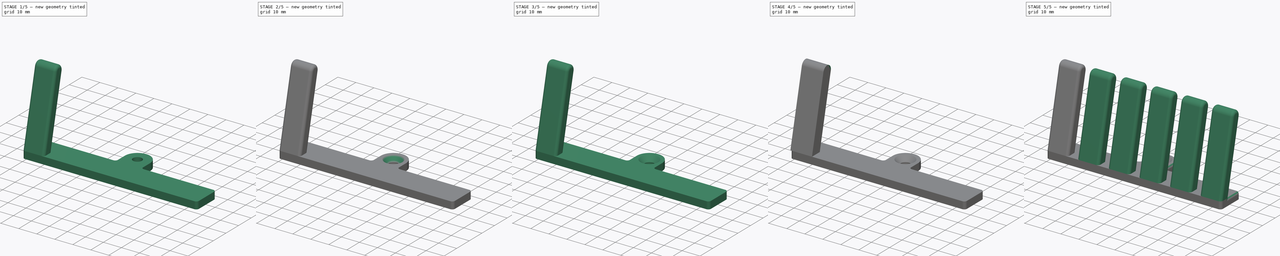
[diagram: build sequence overview — one tinted view per stage of 5, left to right]
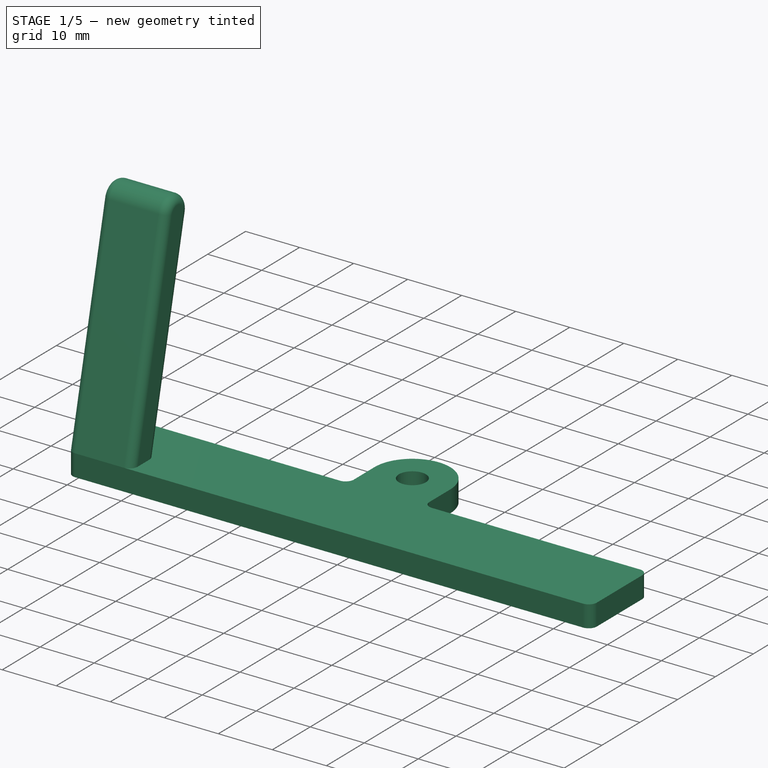
[diagram: stage 1 of 5 — iso view after this stage's code; geometry added in this stage tinted green]
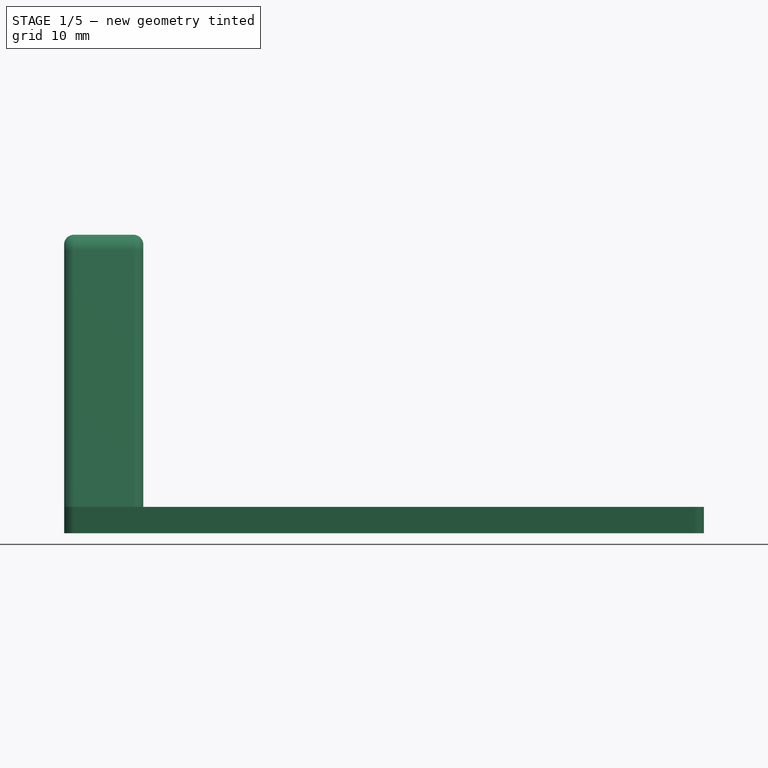
[diagram: stage 1 of 5 — front view after this stage's code; geometry added in this stage tinted green]
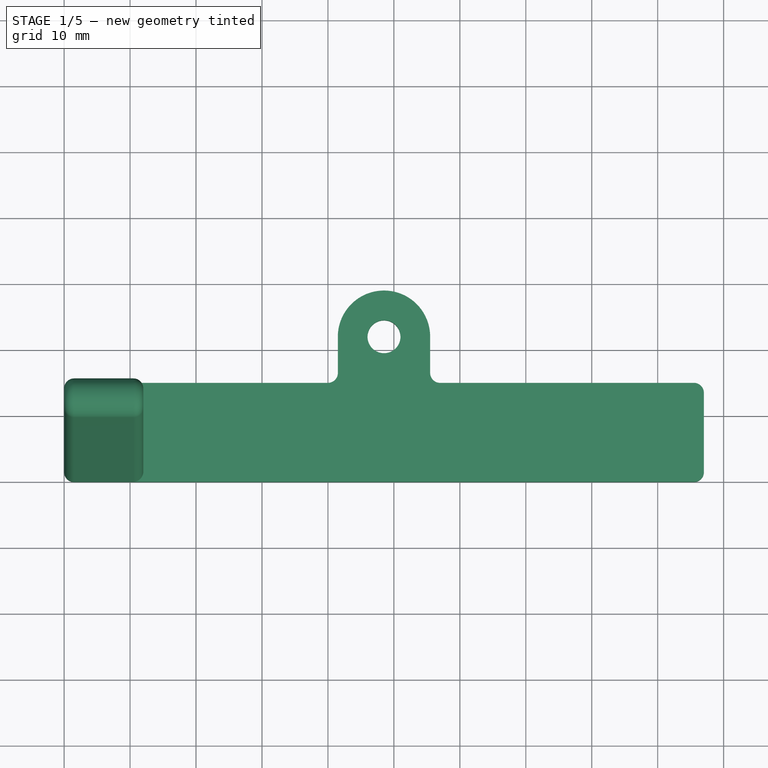
[diagram: stage 1 of 5 — top view after this stage's code; geometry added in this stage tinted green]
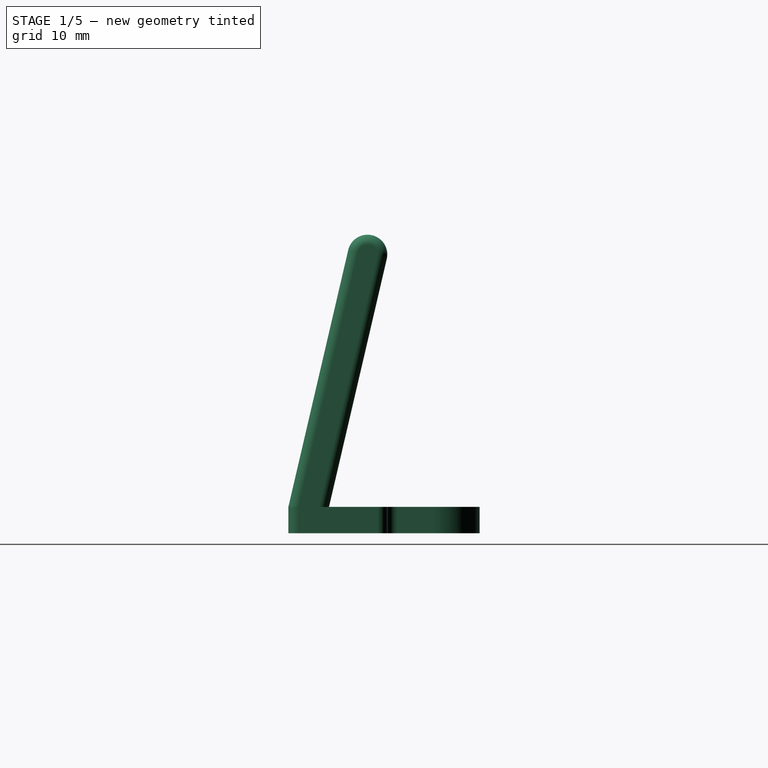
[diagram: stage 1 of 5 — right view after this stage's code; geometry added in this stage tinted green]
FCSTD DOCUMENT  (FreeCAD 0.18R4 (GitTag))
Label: wireHanger
License: All rights reserved
LicenseURL: http://en.wikipedia.org/wiki/All_rights_reserved
objects: Sketcher::SketchObject×7, PartDesign::Pad×7, PartDesign::Fillet×7, PartDesign::Body×7, PartDesign::Chamfer×1, PartDesign::Boolean×1, App::Part×1
note: 37 computed .brp shape members not serialized (recipe doc carries the construction recipe); baked Part::Feature solids carry a one-line shape summary decoded from their .brp

FEATURE [Sketcher::SketchObject] Sketch  label="FrameBase"
  MapMode = 5
  Support = -> [XY_Plane001]
  sketch-geometry (21):
    g0: LineSegment StartX=0 StartY=13.5 StartZ=0 EndX=0 EndY=1.5 EndZ=0
    g1: LineSegment StartX=1.5 StartY=0 StartZ=0 EndX=95.5 EndY=0 EndZ=0
    g2: LineSegment StartX=97 StartY=1.5 StartZ=0 EndX=97 EndY=13.5 EndZ=0
    g3: LineSegment StartX=95.5 StartY=15 StartZ=0 EndX=57 EndY=15 EndZ=0
    g4: LineSegment StartX=55.5 StartY=16.5 StartZ=0 EndX=55.5 EndY=22 EndZ=0
    g5: LineSegment StartX=41.5 StartY=22 StartZ=0 EndX=41.5 EndY=16.5 EndZ=0
    g6: LineSegment StartX=40 StartY=15 StartZ=0 EndX=1.5 EndY=15 EndZ=0
    g7: ArcOfCircle CenterX=48.5 CenterY=22 CenterZ=0 NormalX=0 NormalY=0 NormalZ=1 AngleXU=0 Radius=7 StartAngle=0 EndAngle=3.14159
    g8: ArcOfCircle CenterX=95.5 CenterY=13.5 CenterZ=0 NormalX=0 NormalY=0 NormalZ=1 AngleXU=0 Radius=1.5 StartAngle=0 EndAngle=1.5708
    g9: ArcOfCircle CenterX=95.5 CenterY=1.5 CenterZ=0 NormalX=0 NormalY=0 NormalZ=1 AngleXU=0 Radius=1.5 StartAngle=4.71239 EndAngle=6.28319
    g10: ArcOfCircle CenterX=1.5 CenterY=1.5 CenterZ=0 NormalX=0 NormalY=0 NormalZ=1 AngleXU=0 Radius=1.5 StartAngle=3.14159 EndAngle=4.71239
    g11: ArcOfCircle CenterX=1.5 CenterY=13.5 CenterZ=0 NormalX=0 NormalY=0 NormalZ=1 AngleXU=0 Radius=1.5 StartAngle=1.5708 EndAngle=3.14159
    g12: ArcOfCircle CenterX=57 CenterY=16.5 CenterZ=0 NormalX=0 NormalY=0 NormalZ=1 AngleXU=0 Radius=1.5 StartAngle=3.14159 EndAngle=4.71239
    g13: ArcOfCircle CenterX=40 CenterY=16.5 CenterZ=0 NormalX=0 NormalY=0 NormalZ=1 AngleXU=0 Radius=1.5 StartAngle=4.71239 EndAngle=6.28319
    g14: Circle CenterX=48.5 CenterY=22 CenterZ=0 NormalX=0 NormalY=0 NormalZ=1 AngleXU=0 Radius=2.5
    g15: LineSegment [constr] StartX=0 StartY=11 StartZ=0 EndX=48.5 EndY=11 EndZ=0
    g16: LineSegment [constr] StartX=48.5 StartY=11 StartZ=0 EndX=97 EndY=11 EndZ=0
    g17: LineSegment [constr] StartX=1.5 StartY=0 StartZ=0 EndX=0 EndY=0 EndZ=0
    g18: LineSegment [constr] StartX=0 StartY=1.5 StartZ=0 EndX=0 EndY=0 EndZ=0
    g19: LineSegment [constr] StartX=48.5 StartY=0 StartZ=0 EndX=48.5 EndY=11 EndZ=0
    g20: LineSegment [constr] StartX=48.5 StartY=11 StartZ=0 EndX=48.5 EndY=22 EndZ=0
  constraints (67):
    c: Coincident(g11,g6)
    c: Coincident(g0,g11)
    c: Coincident(g10,g0)
    c: Coincident(g10,g1)
    c: Coincident(g1,g9)
    c: Coincident(g9,g2)
    c: Coincident(g2,g8)
    c: Coincident(g3,g8)
    c: Coincident(g4,g7)
    c: Coincident(g5,g7)
    c: Coincident(g13,g5)
    c: Vertical(g5)
    c: Coincident(g13,g6)
    c: Horizontal(g6)
    c: Coincident(g12,g3)
    c: Coincident(g12,g4)
    c: Vertical(g0)
    c: Vertical(g2)
    c: Horizontal(g1)
    c: Horizontal(g3)
    c: Vertical(g4)
    c: Horizontal(g4,g7)
    c: Horizontal(g7,g5)
    c: Horizontal(g12,g4)
    c: Horizontal(g4,g5)
    c: Horizontal(g5,g13)
    c: Vertical(g6,g13)
    c: Vertical(g3,g12)
    c: Vertical(g8,g3)
    c: Vertical(g3,g1)
    c: Vertical(g1,g9)
    c: Horizontal(g2,g9)
    c: Horizontal(g9,g10)
    c: Horizontal(g10,g0)
    c: Vertical(g1,g10)
    c: Vertical(g10,g11)
    c: Vertical(g11,g6)
    c: Horizontal(g2,g8)
    c: Horizontal(g8,g11)
    c: Horizontal(g11,g0)
    c: Coincident(g14,g7)
    c: Radius(g10) = 1.5
    c: Coincident(g15,g16)
    c: PointOnObject(g15,g0)
    c: Perpendicular(g15,g0)
    c: PointOnObject(g16,g2)
    c: Perpendicular(g2,g16)
    c: Vertical(g7,g15)
    c: Equal(g16,g15)
    c: Radius(g14) = 2.5
    c: Radius(g7) = 7
    c: DistanceY(g6,g7) = 7
    c: Coincident(g17,g18)
    c: Coincident(g17,g1)
    c: Coincident(g18,g0)
    c: Horizontal(g17)
    c: Vertical(g18)
    c: Coincident(g-1,g17)
    c: DistanceY(g1,g6) = 15
    c: Equal(g13,g10)
    c: DistanceX(g15,g15) = 48.5
    c: Coincident(g19,g15)
    c: Coincident(g20,g15)
    c: PointOnObject(g19,g1)
    c: Coincident(g20,g7)
    c: Equal(g19,g20)
    c: Perpendicular(g1,g19)
FEATURE [PartDesign::Pad] Pad  label="PadFrameBase"
  Length = 4
  Length2 = 100
  Profile = -> Sketch
  Type = 0
FEATURE [Sketcher::SketchObject] Sketch006
  MapMode = 5
  Placement = pos=(0,0,0) rot=(0.57735,0.57735,0.57735;2.0944rad)
  Support = -> [YZ_Plane007]
  sketch-geometry (5):
    g0: LineSegment StartX=0 StartY=4 StartZ=0 EndX=9.07829 EndY=42.9562 EndZ=0
    g1: LineSegment StartX=6.16077 StartY=4 StartZ=0 EndX=14.9217 EndY=41.5944 EndZ=0
    g2: LineSegment StartX=6.16077 StartY=4 StartZ=0 EndX=0 EndY=4 EndZ=0
    g3: ArcOfCircle CenterX=12 CenterY=42.2753 CenterZ=0 NormalX=0 NormalY=0 NormalZ=1 AngleXU=0 Radius=3 StartAngle=6.05423 EndAngle=9.19583
    g4: LineSegment [constr] StartX=14.9217 StartY=41.5944 StartZ=0 EndX=9.07829 EndY=42.9562 EndZ=0
  constraints (15):
    c: Coincident(g2,g1)
    c: Parallel(g0,g1)
    c: Horizontal(g2)
    c: Coincident(g3,g1)
    c: Coincident(g3,g0)
    c: Coincident(g4,g0)
    c: Coincident(g4,g1)
    c: PointOnObject(g3,g4)
    c: Perpendicular(g4,g1)
    c: Radius(g3) = 3
    c: Distance(g0) = 40
    c: DistanceX(g0,g3) = 12
    c: Coincident(g0,g2)
    c: Vertical(g0,g-1)
    c: DistanceY(g-1,g0) = 4
FEATURE [PartDesign::Pad] Pad006
  Length = 12
  Length2 = 100
  Placement = pos=(0,0,0) rot=(0.57735,0.57735,0.57735;2.0944rad)
  Profile = -> Sketch006
  Type = 0
FEATURE [PartDesign::Fillet] Fillet005
  Base = -> Pad006 [Edge11,Edge7]
  BaseFeature = -> Pad006
  Placement = pos=(0,0,0) rot=(0.57735,0.57735,0.57735;2.0944rad)
  Radius = 1.5
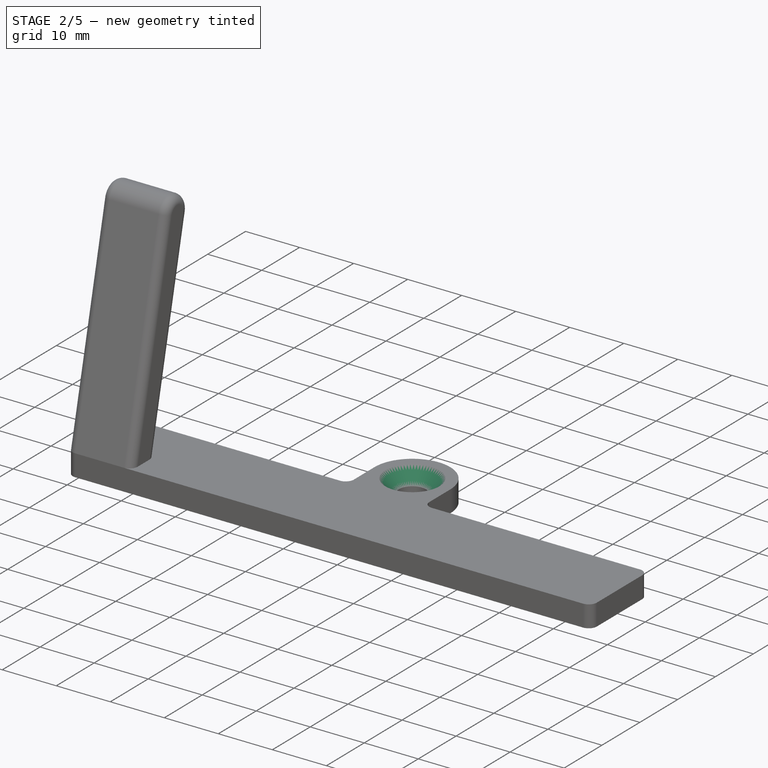
[diagram: stage 2 of 5 — iso view after this stage's code; geometry added in this stage tinted green]
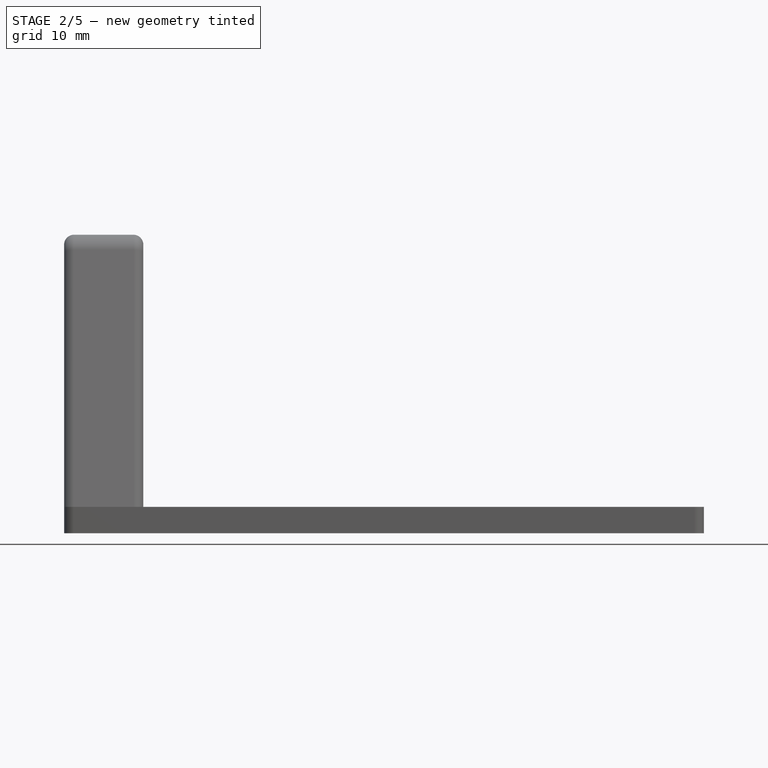
[diagram: stage 2 of 5 — front view after this stage's code; geometry added in this stage tinted green]
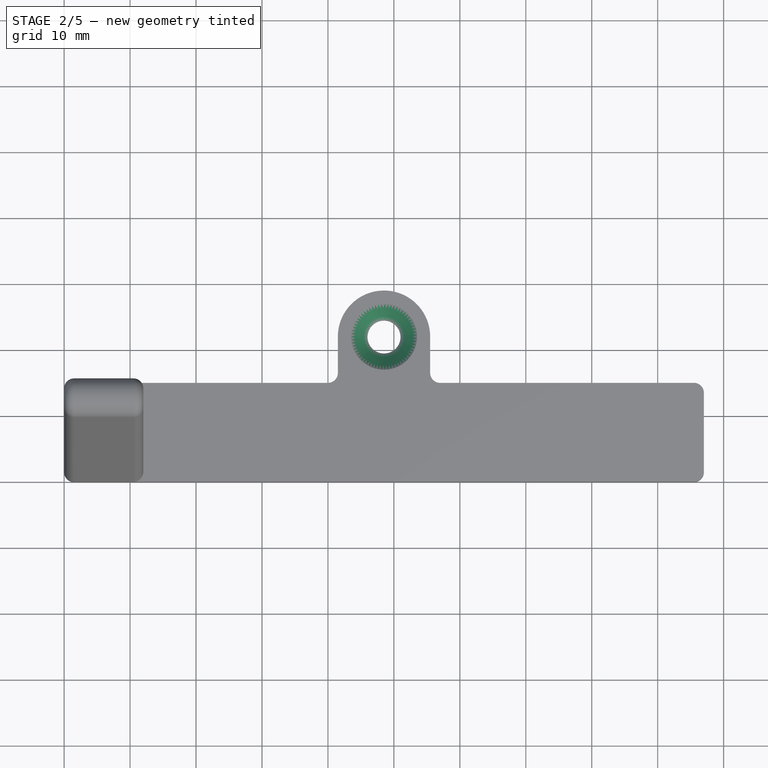
[diagram: stage 2 of 5 — top view after this stage's code; geometry added in this stage tinted green]
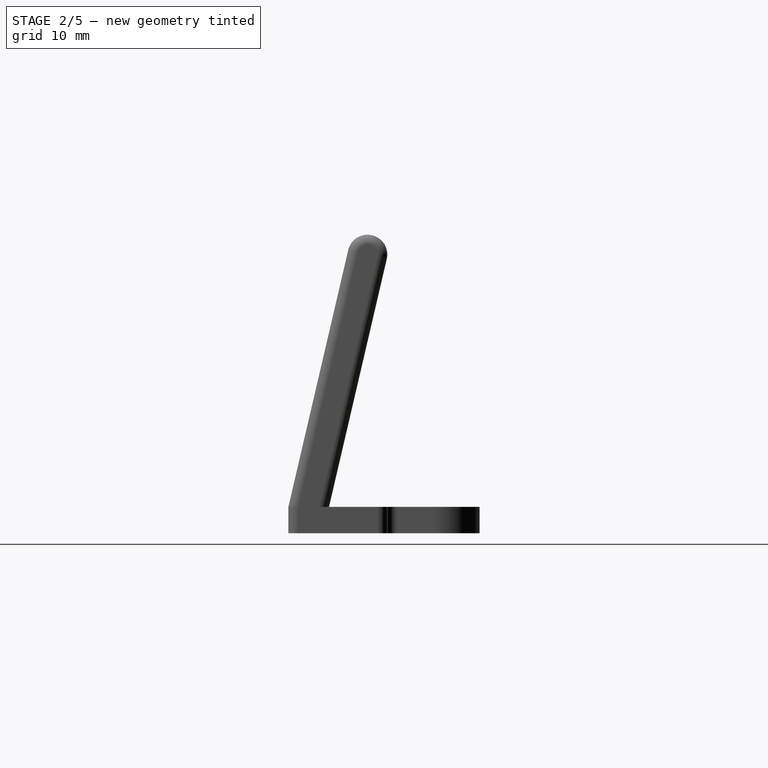
[diagram: stage 2 of 5 — right view after this stage's code; geometry added in this stage tinted green]
FEATURE [PartDesign::Body] Body004  label="hook003"
  Group = -> [Sketch004,Pad004,Fillet003]
  Origin = -> Origin005
  Placement = pos=(51,0,0) rot=(0,0,1;0rad)
  Tip = -> Fillet003
FEATURE [Sketcher::SketchObject] Sketch005
  MapMode = 5
  Placement = pos=(0,0,0) rot=(0.57735,0.57735,0.57735;2.0944rad)
  Support = -> [YZ_Plane006]
  sketch-geometry (5):
    g0: LineSegment StartX=0 StartY=4 StartZ=0 EndX=9.07829 EndY=42.9562 EndZ=0
    g1: LineSegment StartX=6.16077 StartY=4 StartZ=0 EndX=14.9217 EndY=41.5944 EndZ=0
    g2: LineSegment StartX=6.16077 StartY=4 StartZ=0 EndX=0 EndY=4 EndZ=0
    g3: ArcOfCircle CenterX=12 CenterY=42.2753 CenterZ=0 NormalX=0 NormalY=0 NormalZ=1 AngleXU=0 Radius=3 StartAngle=6.05423 EndAngle=9.19583
    g4: LineSegment [constr] StartX=14.9217 StartY=41.5944 StartZ=0 EndX=9.07829 EndY=42.9562 EndZ=0
  constraints (15):
    c: Coincident(g2,g1)
    c: Parallel(g0,g1)
    c: Horizontal(g2)
    c: Coincident(g3,g1)
    c: Coincident(g3,g0)
    c: Coincident(g4,g0)
    c: Coincident(g4,g1)
    c: PointOnObject(g3,g4)
    c: Perpendicular(g4,g1)
    c: Radius(g3) = 3
    c: Distance(g0) = 40
    c: DistanceX(g0,g3) = 12
    c: Coincident(g0,g2)
    c: Vertical(g0,g-1)
    c: DistanceY(g-1,g0) = 4
FEATURE [PartDesign::Pad] Pad005
  Length = 12
  Length2 = 100
  Placement = pos=(0,0,0) rot=(0.57735,0.57735,0.57735;2.0944rad)
  Profile = -> Sketch005
  Type = 0
FEATURE [PartDesign::Fillet] Fillet004
  Base = -> Pad005 [Edge11,Edge7]
  BaseFeature = -> Pad005
  Placement = pos=(0,0,0) rot=(0.57735,0.57735,0.57735;2.0944rad)
  Radius = 1.5
FEATURE [PartDesign::Body] Body005  label="hook004"
  Group = -> [Sketch005,Pad005,Fillet004]
  Origin = -> Origin006
  Placement = pos=(68,0,0) rot=(0,0,1;0rad)
  Tip = -> Fillet004
FEATURE [PartDesign::Chamfer] Chamfer  label="ChamferScrewCountersink"
  Base = -> Pad [Edge45]
  BaseFeature = -> Pad
  Size = 2.5
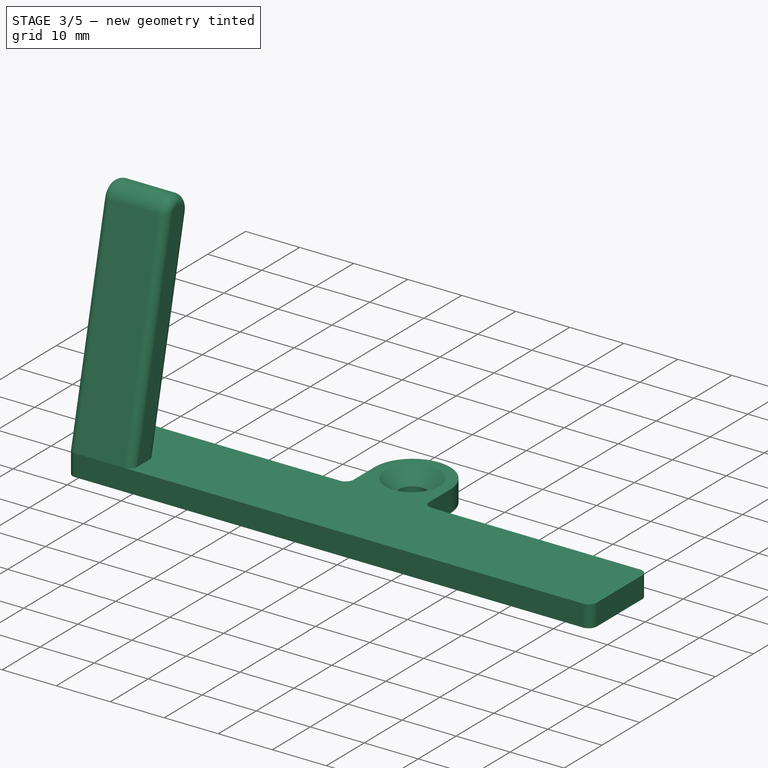
[diagram: stage 3 of 5 — iso view after this stage's code; geometry added in this stage tinted green]
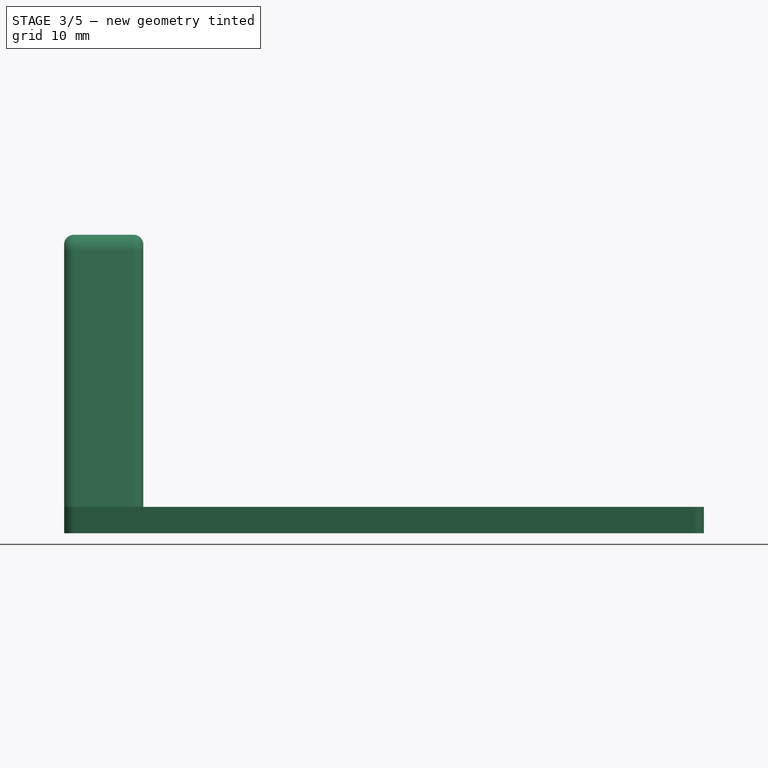
[diagram: stage 3 of 5 — front view after this stage's code; geometry added in this stage tinted green]
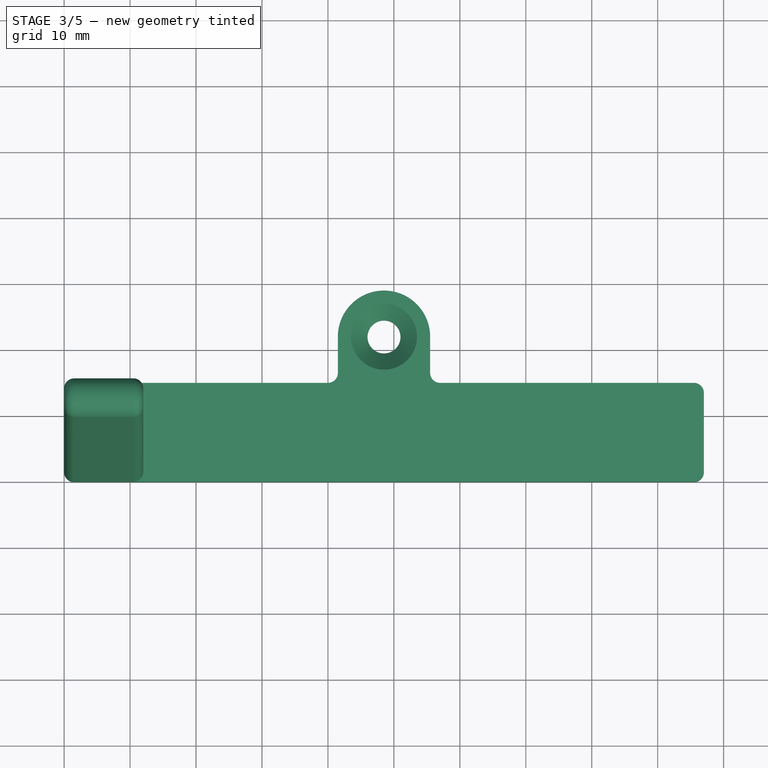
[diagram: stage 3 of 5 — top view after this stage's code; geometry added in this stage tinted green]
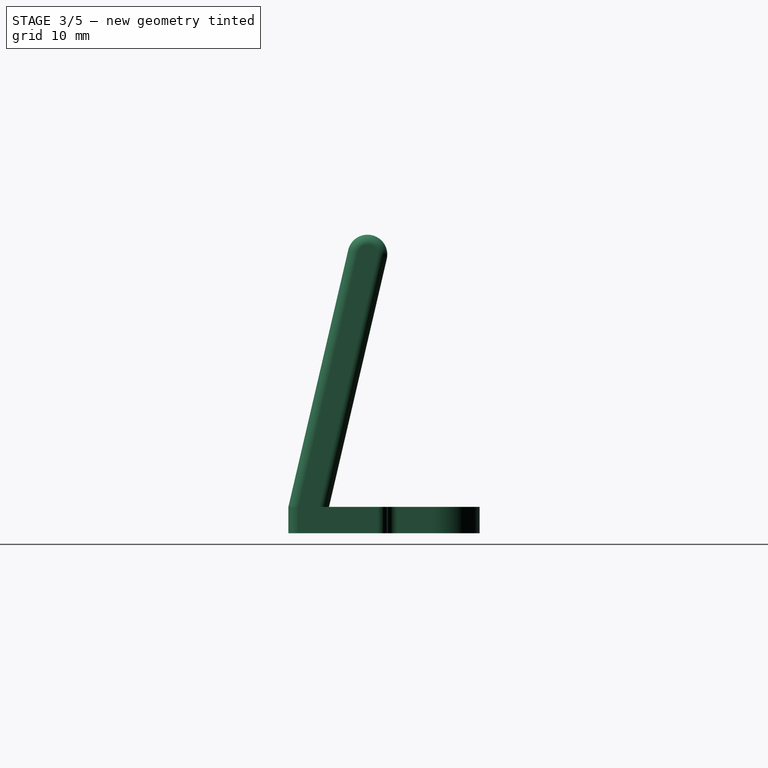
[diagram: stage 3 of 5 — right view after this stage's code; geometry added in this stage tinted green]
FEATURE [PartDesign::Body] Body002  label="hook001"
  Group = -> [Sketch002,Pad002,Fillet001]
  Origin = -> Origin003
  Placement = pos=(17,0,0) rot=(0,0,1;0rad)
  Tip = -> Fillet001
FEATURE [Sketcher::SketchObject] Sketch003
  MapMode = 5
  Placement = pos=(0,0,0) rot=(0.57735,0.57735,0.57735;2.0944rad)
  Support = -> [YZ_Plane004]
  sketch-geometry (5):
    g0: LineSegment StartX=0 StartY=4 StartZ=0 EndX=9.07829 EndY=42.9562 EndZ=0
    g1: LineSegment StartX=6.16077 StartY=4 StartZ=0 EndX=14.9217 EndY=41.5944 EndZ=0
    g2: LineSegment StartX=6.16077 StartY=4 StartZ=0 EndX=0 EndY=4 EndZ=0
    g3: ArcOfCircle CenterX=12 CenterY=42.2753 CenterZ=0 NormalX=0 NormalY=0 NormalZ=1 AngleXU=0 Radius=3 StartAngle=6.05423 EndAngle=9.19583
    g4: LineSegment [constr] StartX=14.9217 StartY=41.5944 StartZ=0 EndX=9.07829 EndY=42.9562 EndZ=0
  constraints (15):
    c: Coincident(g2,g1)
    c: Parallel(g0,g1)
    c: Horizontal(g2)
    c: Coincident(g3,g1)
    c: Coincident(g3,g0)
    c: Coincident(g4,g0)
    c: Coincident(g4,g1)
    c: PointOnObject(g3,g4)
    c: Perpendicular(g4,g1)
    c: Radius(g3) = 3
    c: Distance(g0) = 40
    c: DistanceX(g0,g3) = 12
    c: Coincident(g0,g2)
    c: Vertical(g0,g-1)
    c: DistanceY(g-1,g0) = 4
FEATURE [PartDesign::Pad] Pad003
  Length = 12
  Length2 = 100
  Placement = pos=(0,0,0) rot=(0.57735,0.57735,0.57735;2.0944rad)
  Profile = -> Sketch003
  Type = 0
FEATURE [PartDesign::Fillet] Fillet002
  Base = -> Pad003 [Edge11,Edge7]
  BaseFeature = -> Pad003
  Placement = pos=(0,0,0) rot=(0.57735,0.57735,0.57735;2.0944rad)
  Radius = 1.5
FEATURE [PartDesign::Body] Body003  label="hook002"
  Group = -> [Sketch003,Pad003,Fillet002]
  Origin = -> Origin004
  Placement = pos=(34,0,0) rot=(0,0,1;0rad)
  Tip = -> Fillet002
FEATURE [Sketcher::SketchObject] Sketch004
  MapMode = 5
  Placement = pos=(0,0,0) rot=(0.57735,0.57735,0.57735;2.0944rad)
  Support = -> [YZ_Plane005]
  sketch-geometry (5):
    g0: LineSegment StartX=0 StartY=4 StartZ=0 EndX=9.07829 EndY=42.9562 EndZ=0
    g1: LineSegment StartX=6.16077 StartY=4 StartZ=0 EndX=14.9217 EndY=41.5944 EndZ=0
    g2: LineSegment StartX=6.16077 StartY=4 StartZ=0 EndX=0 EndY=4 EndZ=0
    g3: ArcOfCircle CenterX=12 CenterY=42.2753 CenterZ=0 NormalX=0 NormalY=0 NormalZ=1 AngleXU=0 Radius=3 StartAngle=6.05423 EndAngle=9.19583
    g4: LineSegment [constr] StartX=14.9217 StartY=41.5944 StartZ=0 EndX=9.07829 EndY=42.9562 EndZ=0
  constraints (15):
    c: Coincident(g2,g1)
    c: Parallel(g0,g1)
    c: Horizontal(g2)
    c: Coincident(g3,g1)
    c: Coincident(g3,g0)
    c: Coincident(g4,g0)
    c: Coincident(g4,g1)
    c: PointOnObject(g3,g4)
    c: Perpendicular(g4,g1)
    c: Radius(g3) = 3
    c: Distance(g0) = 40
    c: DistanceX(g0,g3) = 12
    c: Coincident(g0,g2)
    c: Vertical(g0,g-1)
    c: DistanceY(g-1,g0) = 4
FEATURE [PartDesign::Pad] Pad004
  Length = 12
  Length2 = 100
  Placement = pos=(0,0,0) rot=(0.57735,0.57735,0.57735;2.0944rad)
  Profile = -> Sketch004
  Type = 0
FEATURE [PartDesign::Fillet] Fillet003
  Base = -> Pad004 [Edge11,Edge7]
  BaseFeature = -> Pad004
  Placement = pos=(0,0,0) rot=(0.57735,0.57735,0.57735;2.0944rad)
  Radius = 1.5
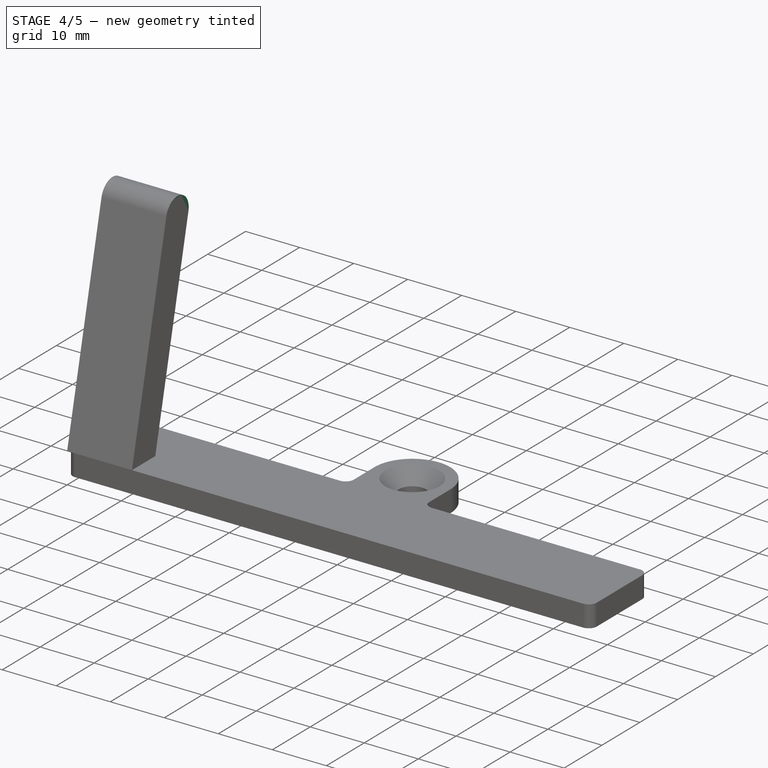
[diagram: stage 4 of 5 — iso view after this stage's code; geometry added in this stage tinted green]
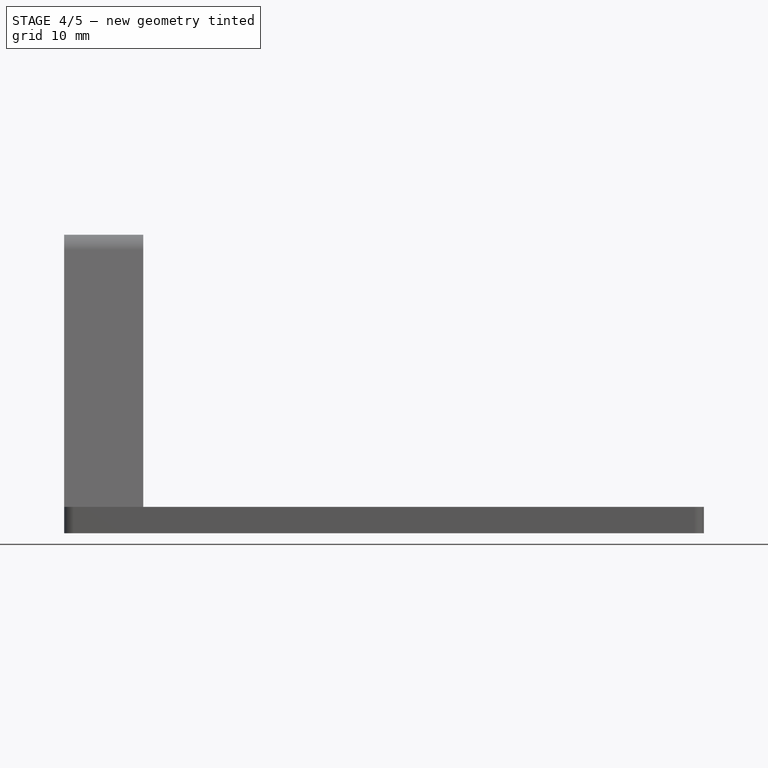
[diagram: stage 4 of 5 — front view after this stage's code; geometry added in this stage tinted green]
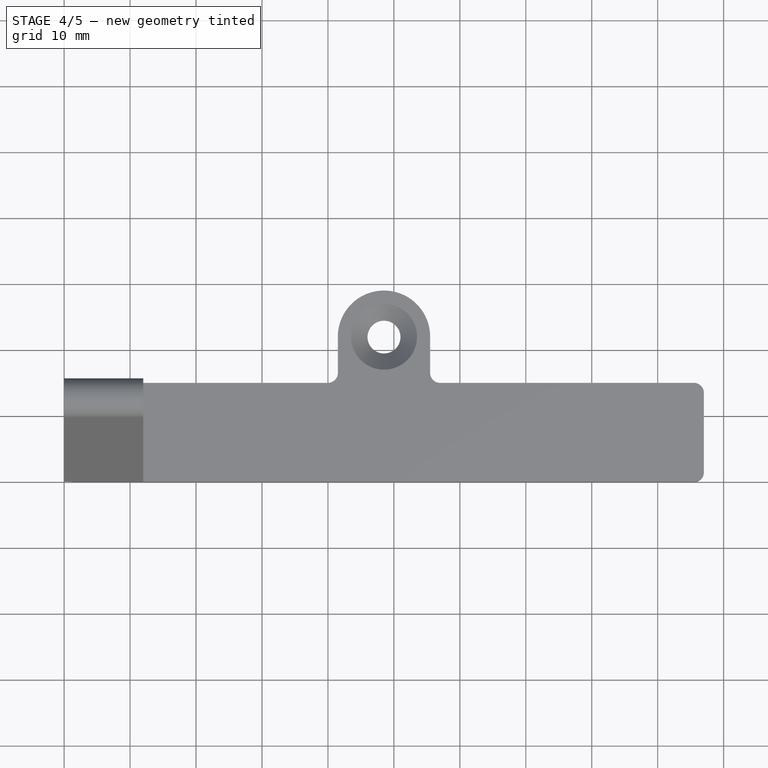
[diagram: stage 4 of 5 — top view after this stage's code; geometry added in this stage tinted green]
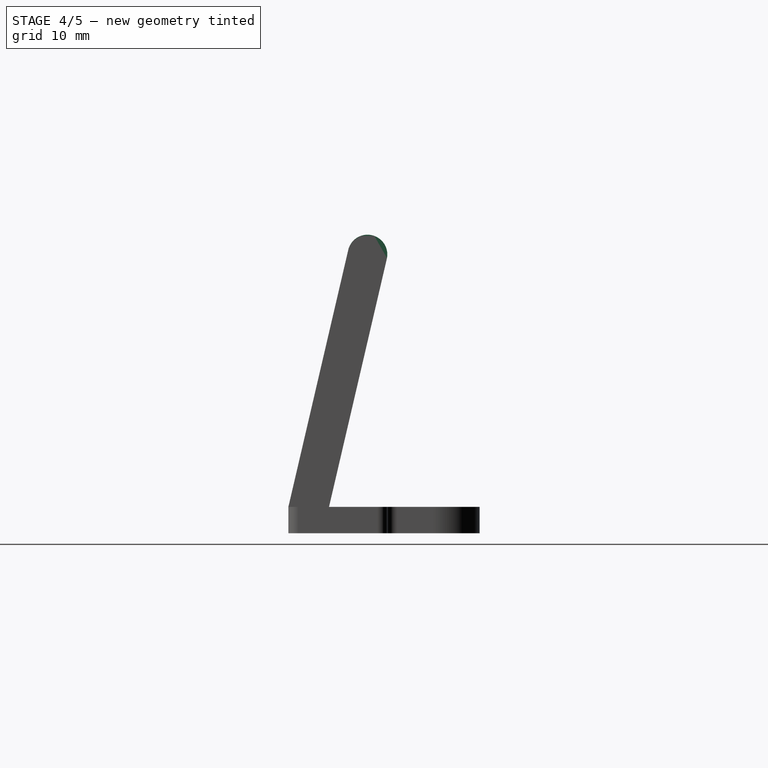
[diagram: stage 4 of 5 — right view after this stage's code; geometry added in this stage tinted green]
FEATURE [Sketcher::SketchObject] Sketch001
  MapMode = 5
  Placement = pos=(0,0,0) rot=(0.57735,0.57735,0.57735;2.0944rad)
  Support = -> [YZ_Plane002]
  sketch-geometry (5):
    g0: LineSegment StartX=0 StartY=4 StartZ=0 EndX=9.07829 EndY=42.9562 EndZ=0
    g1: LineSegment StartX=6.16077 StartY=4 StartZ=0 EndX=14.9217 EndY=41.5944 EndZ=0
    g2: LineSegment StartX=6.16077 StartY=4 StartZ=0 EndX=0 EndY=4 EndZ=0
    g3: ArcOfCircle CenterX=12 CenterY=42.2753 CenterZ=0 NormalX=0 NormalY=0 NormalZ=1 AngleXU=0 Radius=3 StartAngle=6.05423 EndAngle=9.19583
    g4: LineSegment [constr] StartX=14.9217 StartY=41.5944 StartZ=0 EndX=9.07829 EndY=42.9562 EndZ=0
  constraints (15):
    c: Coincident(g2,g1)
    c: Parallel(g0,g1)
    c: Horizontal(g2)
    c: Coincident(g3,g1)
    c: Coincident(g3,g0)
    c: Coincident(g4,g0)
    c: Coincident(g4,g1)
    c: PointOnObject(g3,g4)
    c: Perpendicular(g4,g1)
    c: Radius(g3) = 3
    c: Distance(g0) = 40
    c: DistanceX(g0,g3) = 12
    c: Coincident(g0,g2)
    c: Vertical(g0,g-1)
    c: DistanceY(g-1,g0) = 4
FEATURE [PartDesign::Pad] Pad001
  Length = 12
  Length2 = 100
  Placement = pos=(0,0,0) rot=(0.57735,0.57735,0.57735;2.0944rad)
  Profile = -> Sketch001
  Type = 0
FEATURE [PartDesign::Body] Body001  label="hook"
  Group = -> [Sketch001,Pad001,Fillet]
  Origin = -> Origin002
  Tip = -> Fillet
FEATURE [Sketcher::SketchObject] Sketch002
  MapMode = 5
  Placement = pos=(0,0,0) rot=(0.57735,0.57735,0.57735;2.0944rad)
  Support = -> [YZ_Plane003]
  sketch-geometry (5):
    g0: LineSegment StartX=0 StartY=4 StartZ=0 EndX=9.07829 EndY=42.9562 EndZ=0
    g1: LineSegment StartX=6.16077 StartY=4 StartZ=0 EndX=14.9217 EndY=41.5944 EndZ=0
    g2: LineSegment StartX=6.16077 StartY=4 StartZ=0 EndX=0 EndY=4 EndZ=0
    g3: ArcOfCircle CenterX=12 CenterY=42.2753 CenterZ=0 NormalX=0 NormalY=0 NormalZ=1 AngleXU=0 Radius=3 StartAngle=6.05423 EndAngle=9.19583
    g4: LineSegment [constr] StartX=14.9217 StartY=41.5944 StartZ=0 EndX=9.07829 EndY=42.9562 EndZ=0
  constraints (15):
    c: Coincident(g2,g1)
    c: Parallel(g0,g1)
    c: Horizontal(g2)
    c: Coincident(g3,g1)
    c: Coincident(g3,g0)
    c: Coincident(g4,g0)
    c: Coincident(g4,g1)
    c: PointOnObject(g3,g4)
    c: Perpendicular(g4,g1)
    c: Radius(g3) = 3
    c: Distance(g0) = 40
    c: DistanceX(g0,g3) = 12
    c: Coincident(g0,g2)
    c: Vertical(g0,g-1)
    c: DistanceY(g-1,g0) = 4
FEATURE [PartDesign::Pad] Pad002
  Length = 12
  Length2 = 100
  Placement = pos=(0,0,0) rot=(0.57735,0.57735,0.57735;2.0944rad)
  Profile = -> Sketch002
  Type = 0
FEATURE [PartDesign::Fillet] Fillet001
  Base = -> Pad002 [Edge11,Edge7]
  BaseFeature = -> Pad002
  Placement = pos=(0,0,0) rot=(0.57735,0.57735,0.57735;2.0944rad)
  Radius = 1.5
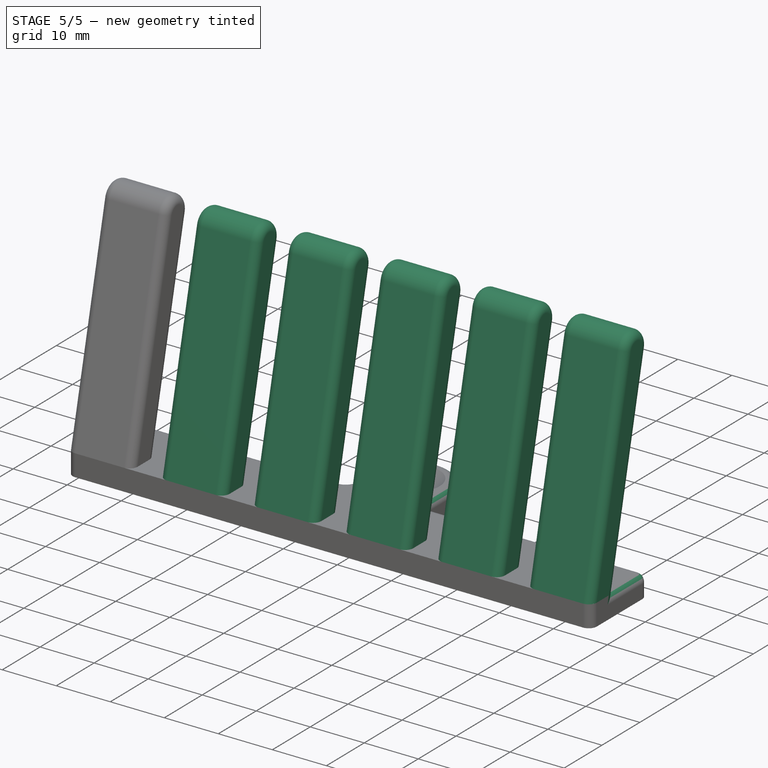
[diagram: stage 5 of 5 — iso view after this stage's code; geometry added in this stage tinted green]
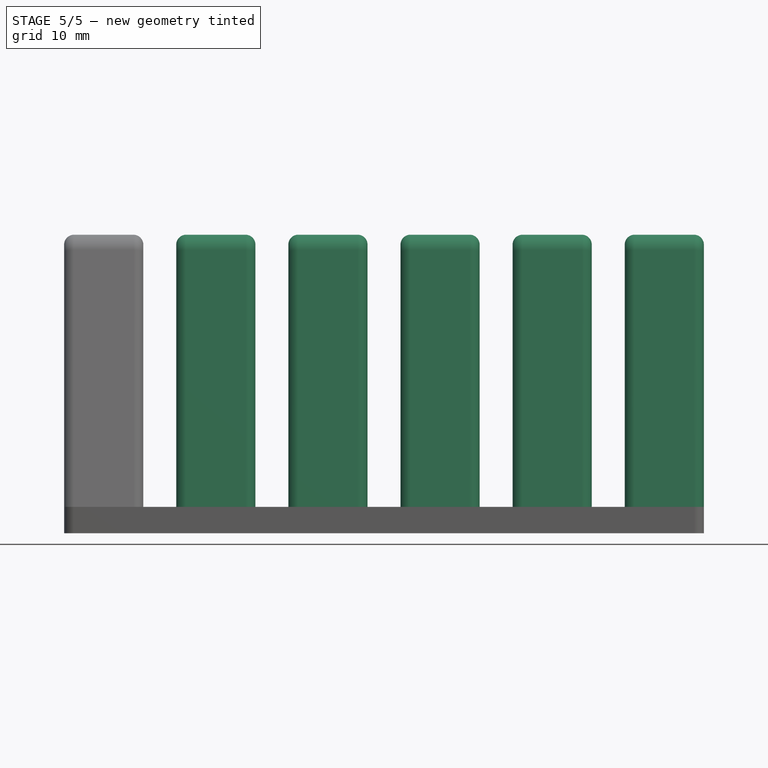
[diagram: stage 5 of 5 — front view after this stage's code; geometry added in this stage tinted green]
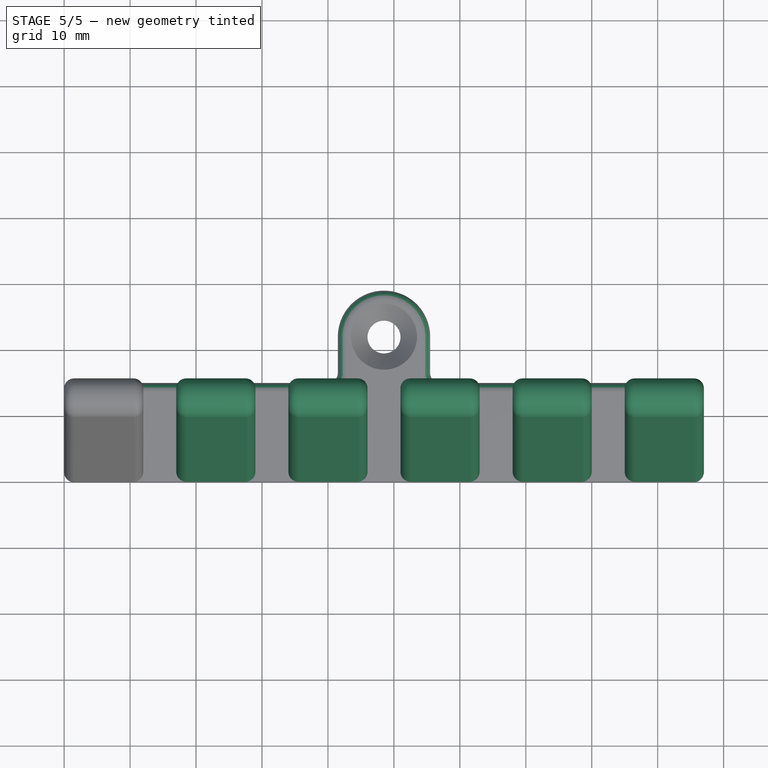
[diagram: stage 5 of 5 — top view after this stage's code; geometry added in this stage tinted green]
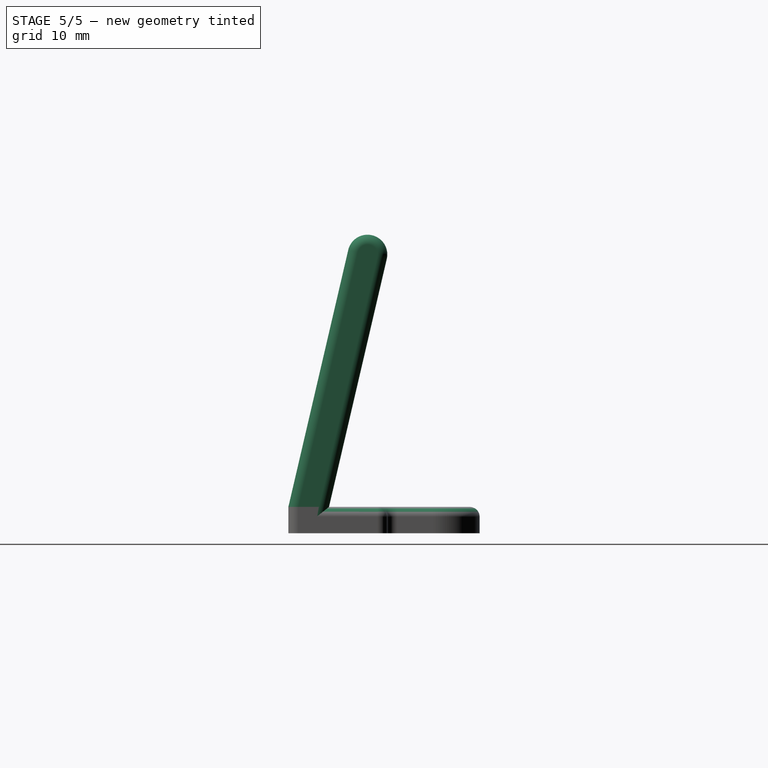
[diagram: stage 5 of 5 — right view after this stage's code; geometry added in this stage tinted green]
FEATURE [PartDesign::Fillet] Fillet
  Base = -> Pad001 [Edge11,Edge7]
  BaseFeature = -> Pad001
  Placement = pos=(0,0,0) rot=(0.57735,0.57735,0.57735;2.0944rad)
  Radius = 1.5
FEATURE [PartDesign::Body] Body006  label="hook005"
  Group = -> [Sketch006,Pad006,Fillet005]
  Origin = -> Origin007
  Placement = pos=(85,0,0) rot=(0,0,1;0rad)
  Tip = -> Fillet005
FEATURE [PartDesign::Boolean] Boolean
  BaseFeature = -> Chamfer
  Group = -> [Body006,Body005,Body004,Body003,Body002,Body001]
  Type = 0
FEATURE [PartDesign::Fillet] Fillet006  label="OuterEdgeFillet"
  Base = -> Boolean [Edge73]
  BaseFeature = -> Boolean
  Radius = 1.5
FEATURE [PartDesign::Body] Body  label="frame"
  Group = -> [Sketch,Pad,Chamfer,Boolean,Fillet006]
  Origin = -> Origin001
  Tip = -> Fillet006
FEATURE [App::Part] Part  label="wireHanger"
  Group = -> [Body]
  Origin = -> Origin
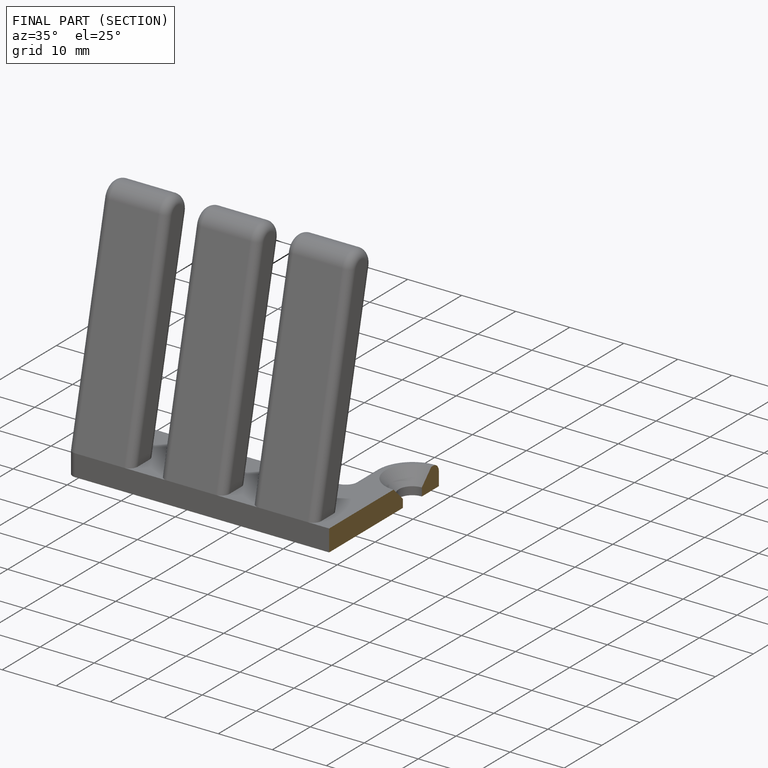
[diagram: finished part — half-section view (interior)]
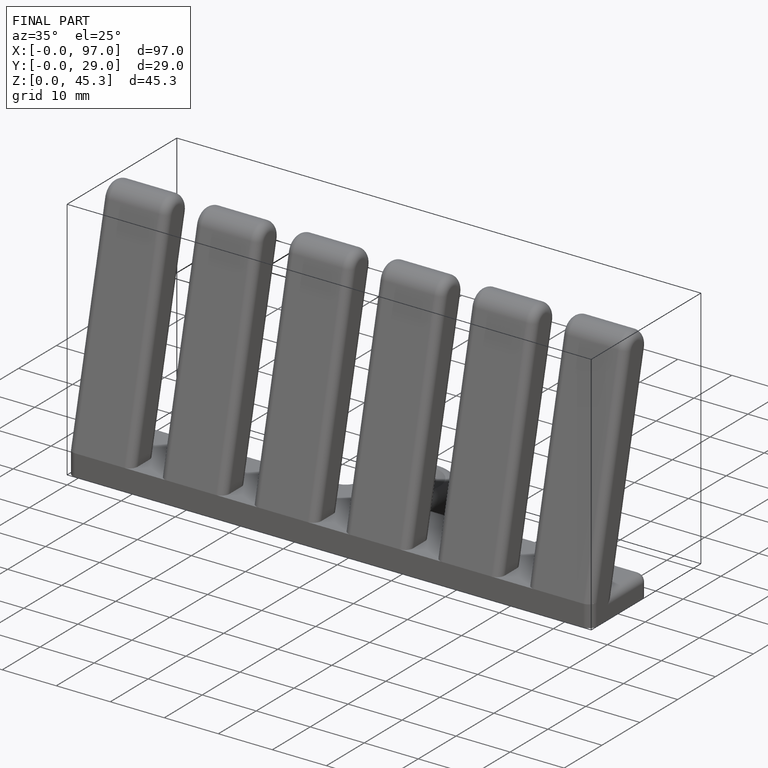
[diagram: finished part — iso view with bounding-box wireframe]
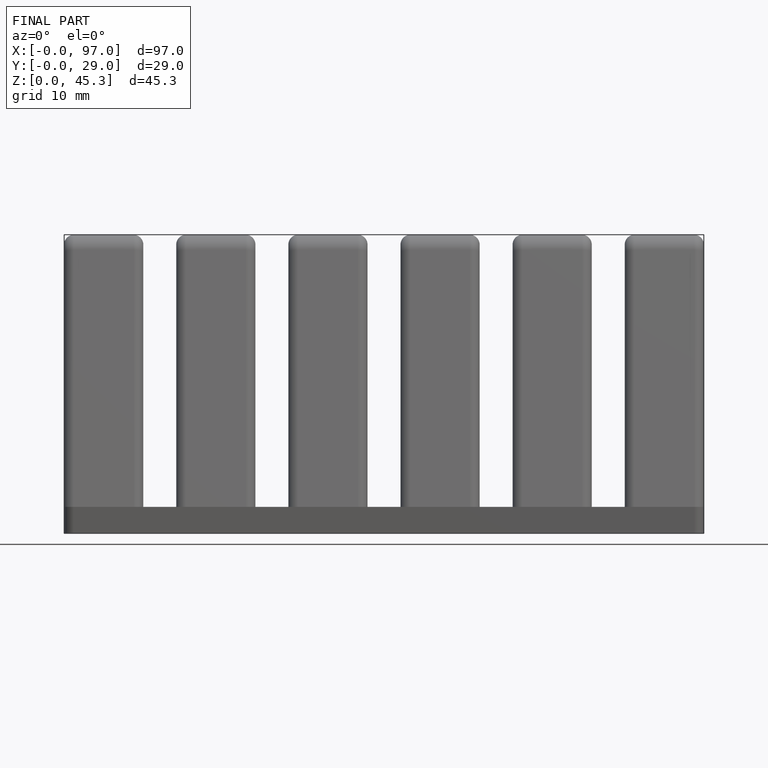
[diagram: finished part — front view with bounding-box wireframe]
